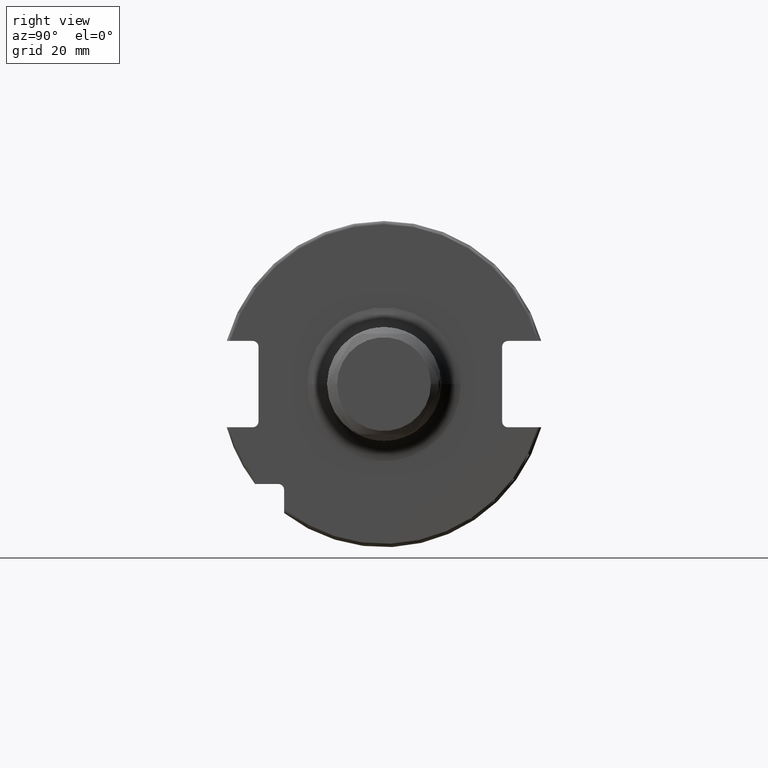
[diagram: clean part render]
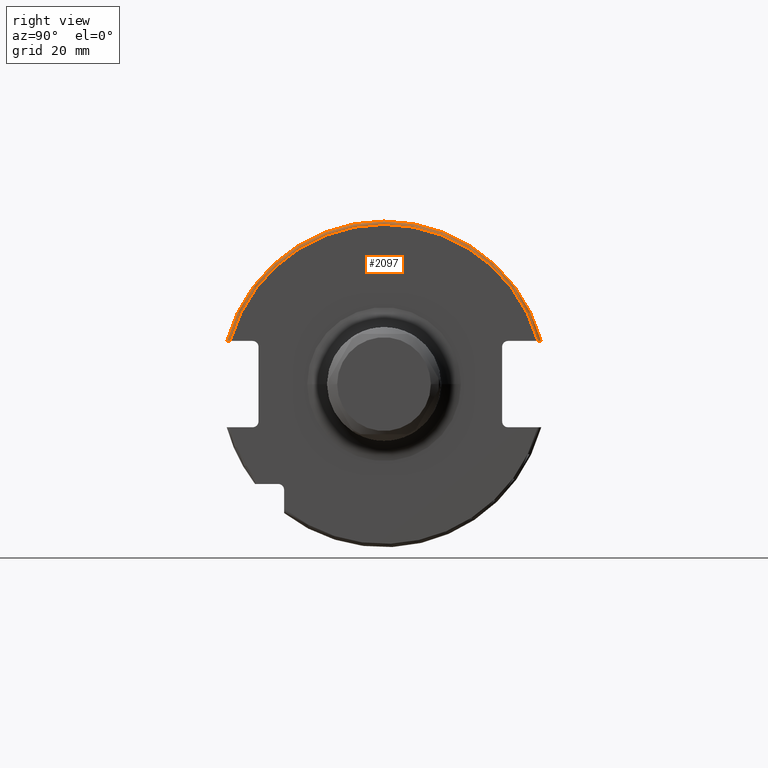
[diagram: same view with one face highlighted and labeled with its STEP entity id]
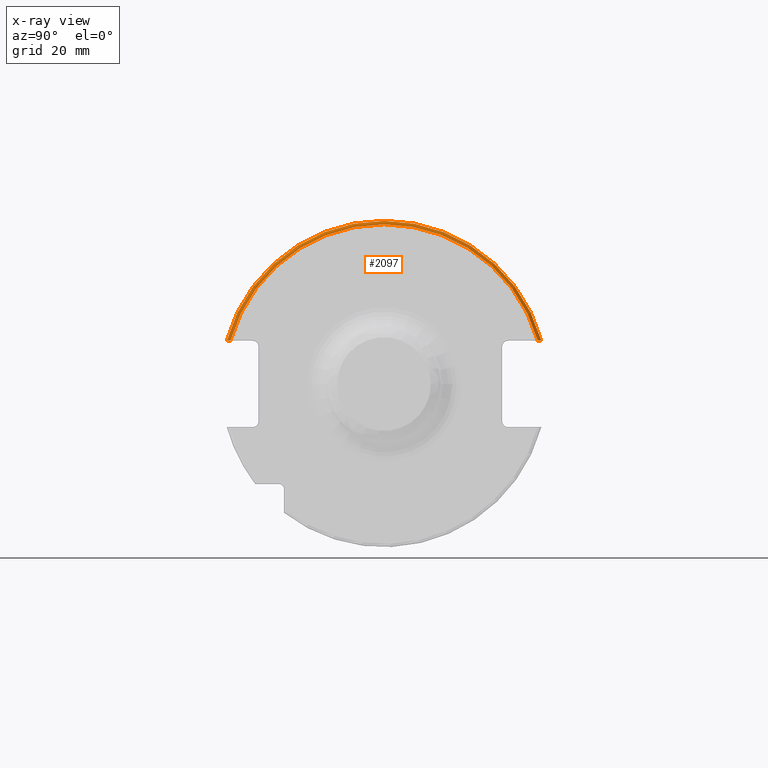
[diagram: x-ray of the same camera — body ghosted, the highlighted face saturated]
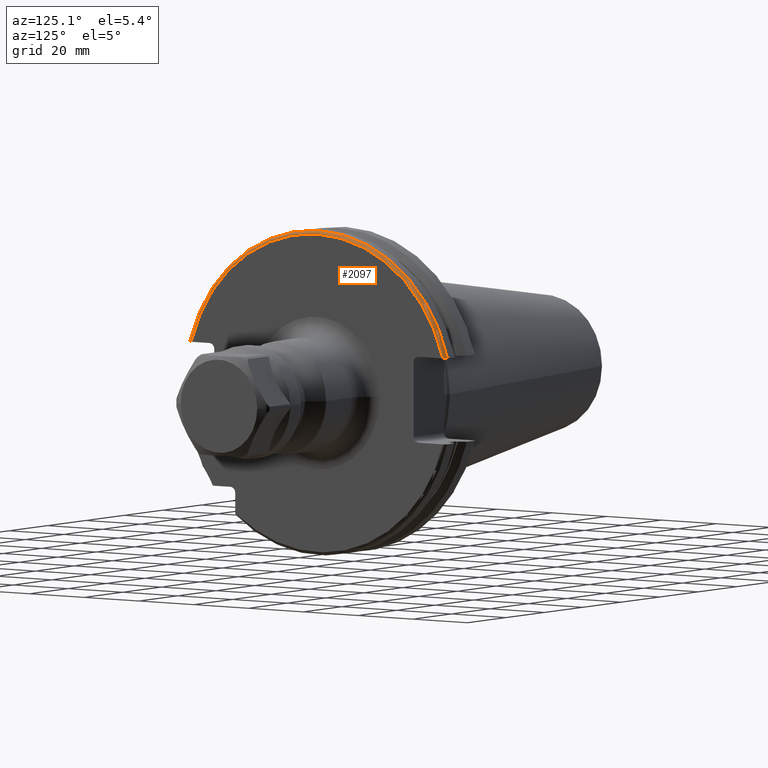
[diagram: same view with one face highlighted and labeled with its STEP entity id]
A machine part, right view. The second image highlights one B-rep face of the part: STEP entity #2097.
The next image is the same camera in x-ray: the body ghosted, the highlighted face saturated — about 0% of this face is hidden behind the body in this view.
A second angle (auxiliary view) of the same face is appended — the face is thin or edge-on in the first view.
In plain terms, the highlighted toroidal blend (fillet) surface has major radius 47.7375 mm and minor (blend) radius 1 mm.
Its self-contained STEP definition (entity closure, byte-faithful):
#367=CARTESIAN_POINT('',(1.905E1,4.596149373389E1,1.29E1));
#368=CARTESIAN_POINT('',(1.905E1,4.604025341545E1,1.29E1));
#369=CARTESIAN_POINT('',(1.903319704314E1,4.619325673207E1,1.29E1));
#370=CARTESIAN_POINT('',(1.895943574721E1,4.641382557540E1,1.29E1));
#371=CARTESIAN_POINT('',(1.884029019608E1,4.661163569902E1,1.29E1));
#372=CARTESIAN_POINT('',(1.868162992187E1,4.677744958982E1,1.29E1));
#373=CARTESIAN_POINT('',(1.849033887272E1,4.690323680095E1,1.29E1));
#374=CARTESIAN_POINT('',(1.827565953653E1,4.698148434228E1,1.29E1));
#375=CARTESIAN_POINT('',(1.812673203795E1,4.699929686974E1,1.29E1));
#376=CARTESIAN_POINT('',(1.805E1,4.699929686974E1,1.29E1));
#378=CARTESIAN_POINT('',(1.905E1,0.E0,0.E0));
#379=DIRECTION('',(1.E0,0.E0,0.E0));
#380=DIRECTION('',(0.E0,9.627964123359E-1,2.702278083268E-1));
#381=AXIS2_PLACEMENT_3D('',#378,#379,#380);
#383=CARTESIAN_POINT('',(1.805E1,-4.699929686974E1,1.29E1));
#384=CARTESIAN_POINT('',(1.812676342368E1,-4.699929686974E1,1.29E1));
#385=CARTESIAN_POINT('',(1.827575329770E1,-4.698147245914E1,1.29E1));
#386=CARTESIAN_POINT('',(1.849056832427E1,-4.690313408822E1,1.29E1));
#387=CARTESIAN_POINT('',(1.868190698842E1,-4.677722381974E1,1.29E1));
#388=CARTESIAN_POINT('',(1.884050497536E1,-4.661134760606E1,1.29E1));
#389=CARTESIAN_POINT('',(1.895953365851E1,-4.641358752589E1,1.29E1));
#390=CARTESIAN_POINT('',(1.903320906929E1,-4.619315655817E1,1.29E1));
#391=CARTESIAN_POINT('',(1.905E1,-4.604021961607E1,1.29E1));
#392=CARTESIAN_POINT('',(1.905E1,-4.596149373389E1,1.29E1));
#411=CARTESIAN_POINT('',(1.805E1,0.E0,0.E0));
#412=DIRECTION('',(1.E0,0.E0,0.E0));
#413=DIRECTION('',(0.E0,9.643354064066E-1,2.646832521159E-1));
#414=AXIS2_PLACEMENT_3D('',#411,#412,#413);
#1442=CARTESIAN_POINT('',(1.805E1,4.699929686974E1,1.29E1));
#1443=VERTEX_POINT('',#1442);
#1446=CARTESIAN_POINT('',(1.805E1,-4.699929686974E1,1.29E1));
#1447=VERTEX_POINT('',#1446);
#1459=VERTEX_POINT('',#367);
#1460=VERTEX_POINT('',#392);
#2085=CARTESIAN_POINT('',(1.805E1,0.E0,0.E0));
#2086=DIRECTION('',(1.E0,0.E0,0.E0));
#2087=DIRECTION('',(0.E0,-1.E0,0.E0));
#2088=AXIS2_PLACEMENT_3D('',#2085,#2086,#2087);
#2089=TOROIDAL_SURFACE('',#2088,4.77375E1,1.E0);
#2090=ORIENTED_EDGE('',*,*,#2060,.F.);
#2091=ORIENTED_EDGE('',*,*,#1784,.T.);
#2092=ORIENTED_EDGE('',*,*,#2021,.F.);
#2094=ORIENTED_EDGE('',*,*,#2093,.F.);
#2095=EDGE_LOOP('',(#2090,#2091,#2092,#2094));
#2096=FACE_OUTER_BOUND('',#2095,.F.);
#2097=ADVANCED_FACE('',(#2096),#2089,.T.);
#377=B_SPLINE_CURVE_WITH_KNOTS('',3,(#367,#368,#369,#370,#371,#372,#373,#374,
#375,#376),.UNSPECIFIED.,.F.,.F.,(4,1,1,1,1,1,1,4),(0.E0,1.428571428571E-1,
2.857142857143E-1,4.285714285714E-1,5.714285714286E-1,7.142857142857E-1,
8.571428571429E-1,1.E0),.UNSPECIFIED.);
#382=CIRCLE('',#381,4.77375E1);
#393=B_SPLINE_CURVE_WITH_KNOTS('',3,(#383,#384,#385,#386,#387,#388,#389,#390,
#391,#392),.UNSPECIFIED.,.F.,.F.,(4,1,1,1,1,1,1,4),(0.E0,1.428571428571E-1,
2.857142857143E-1,4.285714285714E-1,5.714285714286E-1,7.142857142857E-1,
8.571428571429E-1,1.E0),.UNSPECIFIED.);
#415=CIRCLE('',#414,4.87375E1);
#1784=EDGE_CURVE('',#1459,#1460,#382,.T.);
#2021=EDGE_CURVE('',#1447,#1460,#393,.T.);
#2060=EDGE_CURVE('',#1459,#1443,#377,.T.);
#2093=EDGE_CURVE('',#1443,#1447,#415,.T.);